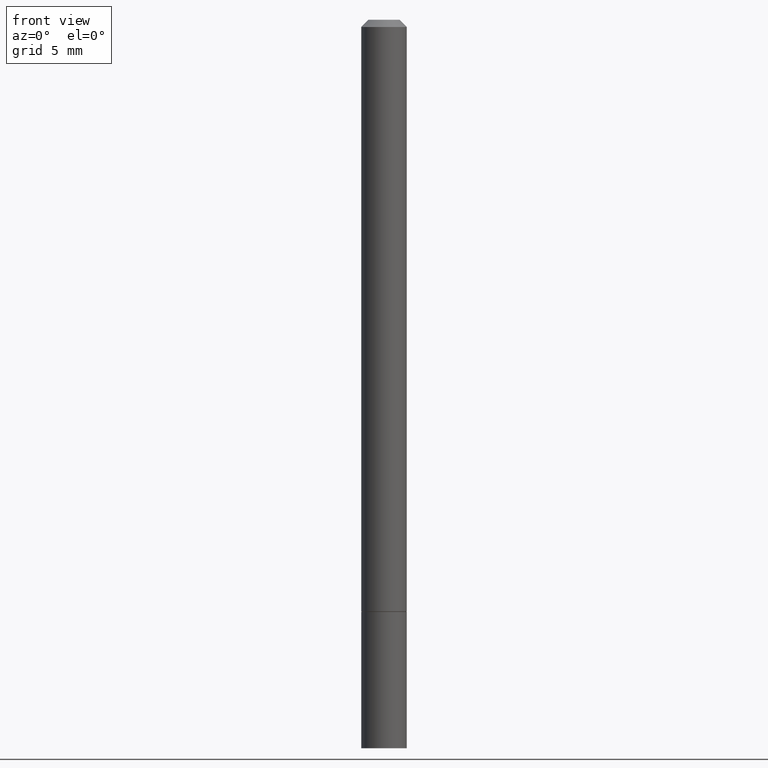
[diagram: clean part render]
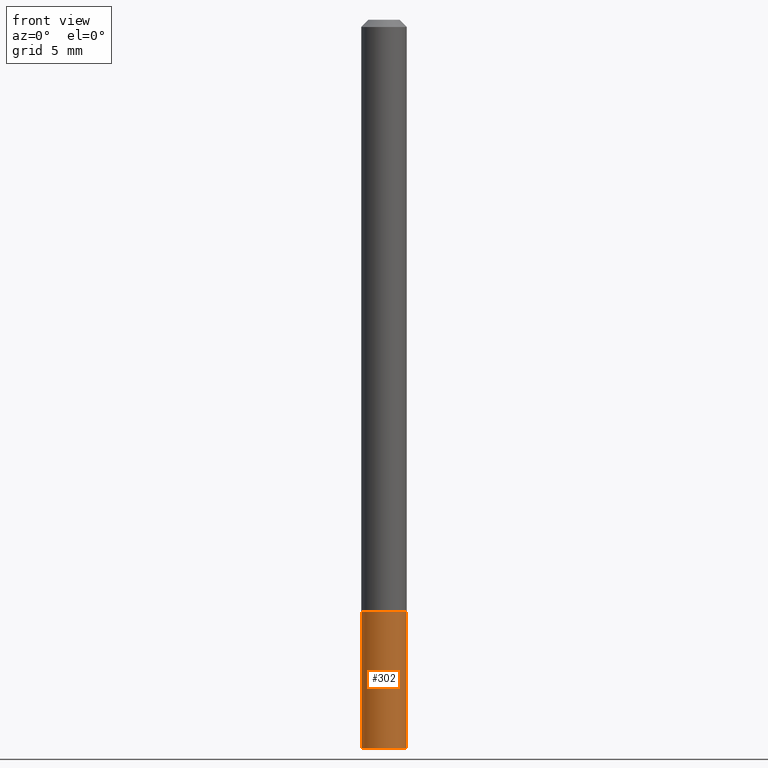
[diagram: same view with one face highlighted and labeled with its STEP entity id]
A machine part, front view. The second image highlights one B-rep face of the part: STEP entity #302.
In plain terms, the highlighted cylindrical surface (edge-blend (fillet) strip) has radius 1.5875 mm, axis along (-0, 0, 1).
Its self-contained STEP definition (entity closure, byte-faithful):
#7 = CARTESIAN_POINT ( 'NONE',  ( 3.973886810050846970E-29, -5.673657175620112213E-15, -1.625000000000000000 ) ) ;
#9 = DIRECTION ( 'NONE',  ( -2.445468806185136597E-29, 3.491481338843145583E-15, 1.000000000000000000 ) ) ;
#11 = EDGE_CURVE ( 'NONE', #184, #65, #170, .T. ) ;
#15 = AXIS2_PLACEMENT_3D ( 'NONE', #243, #9, #121 ) ;
#28 = AXIS2_PLACEMENT_3D ( 'NONE', #154, #49, #270 ) ;
#38 = ORIENTED_EDGE ( 'NONE', *, *, #54, .T. ) ;
#44 = VECTOR ( 'NONE', #145, 39.37007874015748143 ) ;
#49 = DIRECTION ( 'NONE',  ( -2.445468806185136597E-29, 3.491481338843145583E-15, 1.000000000000000000 ) ) ;
#54 = EDGE_CURVE ( 'NONE', #260, #184, #185, .T. ) ;
#55 = DIRECTION ( 'NONE',  ( 1.000000000000000000, -6.982962677686261189E-15, 0.000000000000000000 ) ) ;
#65 = VERTEX_POINT ( 'NONE', #75 ) ;
#75 = CARTESIAN_POINT ( 'NONE',  ( 0.06250000000000001388, -6.110092342975503093E-15, -1.625000000000000000 ) ) ;
#77 = FACE_OUTER_BOUND ( 'NONE', #318, .T. ) ;
#103 = ORIENTED_EDGE ( 'NONE', *, *, #339, .F. ) ;
#109 = VERTEX_POINT ( 'NONE', #150 ) ;
#117 = VECTOR ( 'NONE', #199, 39.37007874015748143 ) ;
#121 = DIRECTION ( 'NONE',  ( 1.000000000000000000, -6.982962677686261189E-15, 0.000000000000000000 ) ) ;
#141 = ORIENTED_EDGE ( 'NONE', *, *, #314, .F. ) ;
#145 = DIRECTION ( 'NONE',  ( -2.445468806185136877E-29, 3.491481338843145188E-15, 1.000000000000000000 ) ) ;
#150 = CARTESIAN_POINT ( 'NONE',  ( -0.06250000000000001388, -5.884220716803138678E-15, -1.625000000000000000 ) ) ;
#154 = CARTESIAN_POINT ( 'NONE',  ( 0.000000000000000000, 0.000000000000000000, 0.000000000000000000 ) ) ;
#163 = AXIS2_PLACEMENT_3D ( 'NONE', #7, #313, #55 ) ;
#164 = LINE ( 'NONE', #195, #117 ) ;
#170 = LINE ( 'NONE', #331, #44 ) ;
#180 = CYLINDRICAL_SURFACE ( 'NONE', #28, 0.06250000000000001388 ) ;
#182 = CARTESIAN_POINT ( 'NONE',  ( -0.06250000000000001388, -5.884220716803138678E-15, -2.000000000000000000 ) ) ;
#184 = VERTEX_POINT ( 'NONE', #236 ) ;
#185 = CIRCLE ( 'NONE', #15, 0.06250000000000001388 ) ;
#195 = CARTESIAN_POINT ( 'NONE',  ( -0.06250000000000001388, 4.440892098500627148E-16, -3.074334431409317165E-30 ) ) ;
#199 = DIRECTION ( 'NONE',  ( -2.445468806185136877E-29, 3.491481338843145188E-15, 1.000000000000000000 ) ) ;
#236 = CARTESIAN_POINT ( 'NONE',  ( 0.06250000000000001388, -7.419397845041682046E-15, -2.000000000000000000 ) ) ;
#243 = CARTESIAN_POINT ( 'NONE',  ( 4.890937612370273194E-29, -6.982962677686291165E-15, -2.000000000000000000 ) ) ;
#260 = VERTEX_POINT ( 'NONE', #182 ) ;
#270 = DIRECTION ( 'NONE',  ( 1.000000000000000000, -6.982962677686267499E-15, 4.876176775795935793E-29 ) ) ;
#302 = ADVANCED_FACE ( 'NONE', ( #77 ), #180, .T. ) ;
#306 = CIRCLE ( 'NONE', #163, 0.06250000000000001388 ) ;
#313 = DIRECTION ( 'NONE',  ( -2.445468806185136597E-29, 3.491481338843145583E-15, 1.000000000000000000 ) ) ;
#314 = EDGE_CURVE ( 'NONE', #260, #109, #164, .T. ) ;
#315 = ORIENTED_EDGE ( 'NONE', *, *, #11, .T. ) ;
#318 = EDGE_LOOP ( 'NONE', ( #141, #38, #315, #103 ) ) ;
#331 = CARTESIAN_POINT ( 'NONE',  ( 0.06250000000000001388, -4.364351673553918173E-16, 3.047610484872460571E-30 ) ) ;
#339 = EDGE_CURVE ( 'NONE', #109, #65, #306, .T. ) ;